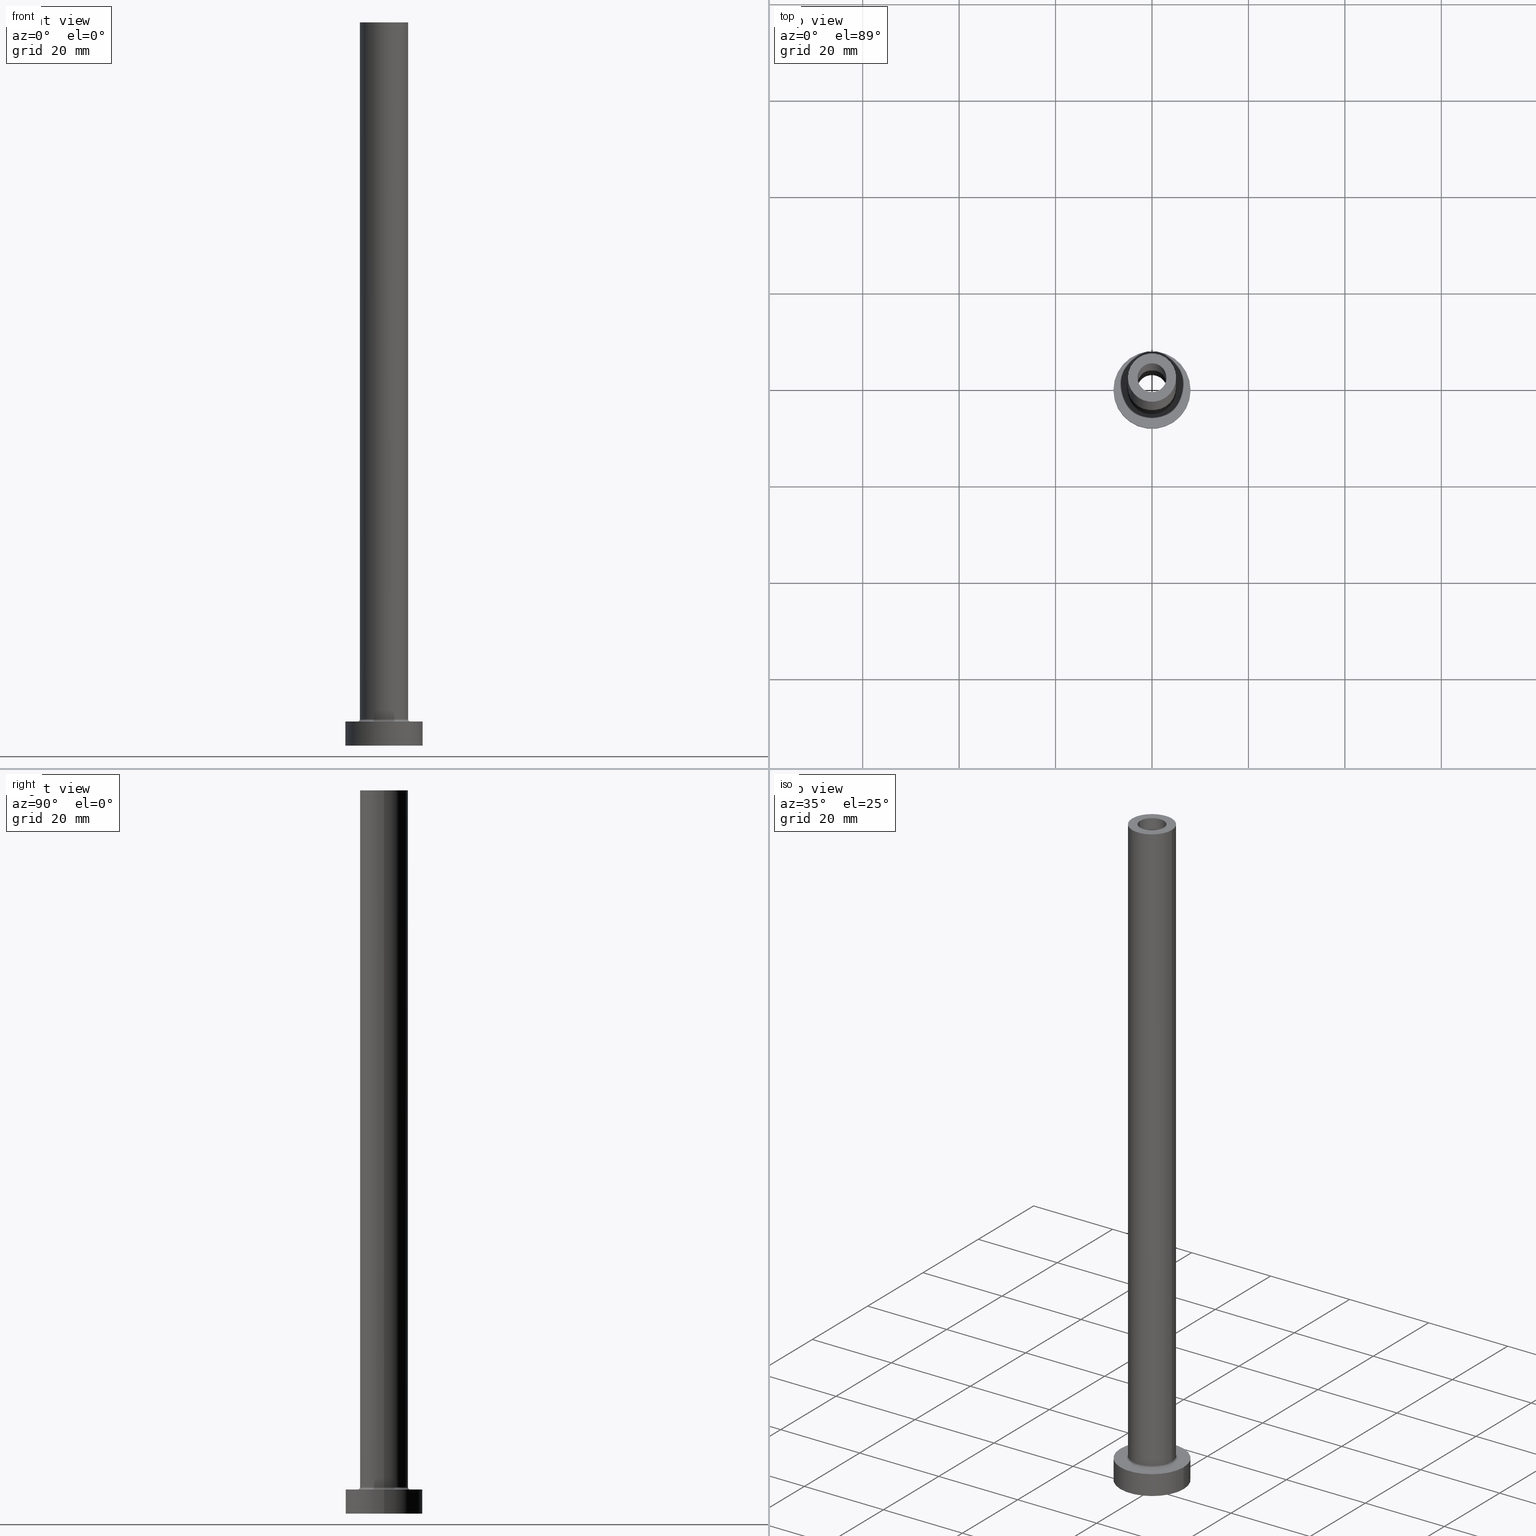
[diagram: canonical four-view strip — front | top / right | iso, engineering-drawing reading convention]
A machine part, canonical four-view strip (front | top / right | iso — engineering-drawing reading convention). The complete STEP part file that produces these views, byte-faithful:
ISO-10303-21;
HEADER;
FILE_DESCRIPTION (( 'STEP AP203' ),
    '1' );
FILE_NAME ('8f07.STEP',
    '2023-02-13T15:32:44',
    ( '' ),
    ( '' ),
    'SwSTEP 2.0',
    'SolidWorks 2019',
    '' );
FILE_SCHEMA (( 'CONFIG_CONTROL_DESIGN' ));
ENDSEC;

DATA;
#1 = FACE_OUTER_BOUND ( 'NONE', #126, .T. ) ;
#2 = CARTESIAN_POINT ( 'NONE',  ( 0.000000000000000000, 0.000000000000000000, 0.000000000000000000 ) ) ;
#3 = DIRECTION ( 'NONE',  ( -1.000000000000000000, 0.000000000000000000, 0.000000000000000000 ) ) ;
#4 = CARTESIAN_POINT ( 'NONE',  ( 8.000000000000000000, 9.797174393178825657E-16, 5.000000000000000000 ) ) ;
#5 = DIRECTION ( 'NONE',  ( 1.000000000000000000, 0.000000000000000000, 0.000000000000000000 ) ) ;
#6 = ORIENTED_EDGE ( 'NONE', *, *, #187, .T. ) ;
#7 = DIRECTION ( 'NONE',  ( -1.000000000000000000, 1.224646799147351482E-16, 0.000000000000000000 ) ) ;
#8 = ORIENTED_EDGE ( 'NONE', *, *, #450, .T. ) ;
#9 = PRODUCT_DEFINITION_FORMATION_WITH_SPECIFIED_SOURCE ( 'LIBOVOLN�', '', #368, .NOT_KNOWN. ) ;
#10 = EDGE_LOOP ( 'NONE', ( #40, #234, #254, #290 ) ) ;
#11 = CARTESIAN_POINT ( 'NONE',  ( 0.000000000000000000, 0.000000000000000000, 5.500000000000005329 ) ) ;
#12 = EDGE_CURVE ( 'NONE', #239, #149, #91, .T. ) ;
#13 = CARTESIAN_POINT ( 'NONE',  ( 0.000000000000000000, 0.000000000000000000, 0.000000000000000000 ) ) ;
#14 = ORIENTED_EDGE ( 'NONE', *, *, #256, .F. ) ;
#15 = ADVANCED_FACE ( 'NONE', ( #109, #138 ), #103, .F. ) ;
#16 = CARTESIAN_POINT ( 'NONE',  ( 0.000000000000000000, 0.000000000000000000, 105.0000000000000000 ) ) ;
#17 = DIRECTION ( 'NONE',  ( 1.000000000000000000, 0.000000000000000000, 0.000000000000000000 ) ) ;
#18 = CARTESIAN_POINT ( 'NONE',  ( 0.000000000000000000, 0.000000000000000000, 150.0000000000000000 ) ) ;
#19 = DIRECTION ( 'NONE',  ( 1.000000000000000000, 0.000000000000000000, 0.000000000000000000 ) ) ;
#20 = CIRCLE ( 'NONE', #71, 0.5000000000000004441 ) ;
#21 = PERSON ( 'NEUR�EN�', 'NEUR�EN�', 'NEUR�EN�', ('NEUR�EN�'), ('NEUR�EN�'), ('NEUR�EN�') ) ;
#22 = VERTEX_POINT ( 'NONE', #185 ) ;
#23 = DIRECTION ( 'NONE',  ( 0.000000000000000000, 0.000000000000000000, -1.000000000000000000 ) ) ;
#24 = APPLICATION_CONTEXT ( 'configuration controlled 3d designs of mechanical parts and assemblies' ) ;
#25 = APPROVAL_STATUS ( 'not_yet_approved' ) ;
#26 = ORIENTED_EDGE ( 'NONE', *, *, #354, .F. ) ;
#27 = EDGE_CURVE ( 'NONE', #429, #110, #203, .T. ) ;
#28 = DIRECTION ( 'NONE',  ( 1.000000000000000000, 0.000000000000000000, 0.000000000000000000 ) ) ;
#29 = AXIS2_PLACEMENT_3D ( 'NONE', #393, #322, #3 ) ;
#30 = PERSON_AND_ORGANIZATION_ROLE ( 'design_supplier' ) ;
#31 = CARTESIAN_POINT ( 'NONE',  ( 0.000000000000000000, 0.000000000000000000, 5.000000000000000000 ) ) ;
#32 = APPLICATION_PROTOCOL_DEFINITION ( 'international standard', 'config_control_design', 1994, #179 ) ;
#33 = DATE_AND_TIME ( #382, #175 ) ;
#34 = APPROVAL_PERSON_ORGANIZATION ( #170, #298, #241 ) ;
#35 = AXIS2_PLACEMENT_3D ( 'NONE', #55, #88, #118 ) ;
#36 = CARTESIAN_POINT ( 'NONE',  ( 0.000000000000000000, 0.000000000000000000, 150.0000000000000000 ) ) ;
#37 = AXIS2_PLACEMENT_3D ( 'NONE', #214, #112, #428 ) ;
#38 = DIRECTION ( 'NONE',  ( 1.000000000000000000, 0.000000000000000000, -0.000000000000000000 ) ) ;
#39 = DIRECTION ( 'NONE',  ( 1.000000000000000000, 0.000000000000000000, 0.000000000000000000 ) ) ;
#40 = ORIENTED_EDGE ( 'NONE', *, *, #421, .F. ) ;
#41 = AXIS2_PLACEMENT_3D ( 'NONE', #289, #430, #7 ) ;
#42 = FACE_OUTER_BOUND ( 'NONE', #10, .T. ) ;
#43 = VERTEX_POINT ( 'NONE', #396 ) ;
#44 = LINE ( 'NONE', #157, #363 ) ;
#45 = CYLINDRICAL_SURFACE ( 'NONE', #50, 3.000000000000000444 ) ;
#46 = FACE_OUTER_BOUND ( 'NONE', #253, .T. ) ;
#47 = ORIENTED_EDGE ( 'NONE', *, *, #104, .F. ) ;
#48 = DIRECTION ( 'NONE',  ( 1.000000000000000000, 0.000000000000000000, 0.000000000000000000 ) ) ;
#49 = DIRECTION ( 'NONE',  ( -0.000000000000000000, -0.000000000000000000, -1.000000000000000000 ) ) ;
#50 = AXIS2_PLACEMENT_3D ( 'NONE', #174, #221, #188 ) ;
#51 = EDGE_CURVE ( 'NONE', #305, #43, #143, .T. ) ;
#52 = CYLINDRICAL_SURFACE ( 'NONE', #124, 5.000000000000000000 ) ;
#53 = DIRECTION ( 'NONE',  ( 1.000000000000000000, 0.000000000000000000, 0.000000000000000000 ) ) ;
#54 = ORIENTED_EDGE ( 'NONE', *, *, #245, .F. ) ;
#55 = CARTESIAN_POINT ( 'NONE',  ( 0.000000000000000000, 0.000000000000000000, 105.0000000000000000 ) ) ;
#56 = EDGE_CURVE ( 'NONE', #152, #360, #193, .T. ) ;
#57 = CC_DESIGN_APPROVAL ( #385, ( #248 ) ) ;
#58 = PLANE ( 'NONE',  #304 ) ;
#59 = AXIS2_PLACEMENT_3D ( 'NONE', #399, #365, #130 ) ;
#60 = DATE_AND_TIME ( #68, #400 ) ;
#61 = EDGE_CURVE ( 'NONE', #22, #440, #263, .T. ) ;
#62 = CARTESIAN_POINT ( 'NONE',  ( 0.000000000000000000, 0.000000000000000000, 0.000000000000000000 ) ) ;
#63 = SECURITY_CLASSIFICATION_LEVEL ( 'unclassified' ) ;
#64 = ORIENTED_EDGE ( 'NONE', *, *, #27, .T. ) ;
#65 = EDGE_CURVE ( 'NONE', #151, #92, #172, .T. ) ;
#66 = CALENDAR_DATE ( 2023, 13, 2 ) ;
#67 = AXIS2_PLACEMENT_3D ( 'NONE', #292, #222, #195 ) ;
#68 = CALENDAR_DATE ( 2023, 13, 2 ) ;
#69 = FACE_OUTER_BOUND ( 'NONE', #190, .T. ) ;
#70 = CARTESIAN_POINT ( 'NONE',  ( 0.000000000000000000, 0.000000000000000000, 0.000000000000000000 ) ) ;
#71 = AXIS2_PLACEMENT_3D ( 'NONE', #390, #258, #392 ) ;
#72 = CARTESIAN_POINT ( 'NONE',  ( 3.000000000000000444, 3.673940397442059868E-16, 150.0000000000000000 ) ) ;
#73 = DIRECTION ( 'NONE',  ( -0.000000000000000000, -0.000000000000000000, -1.000000000000000000 ) ) ;
#74 = CARTESIAN_POINT ( 'NONE',  ( 5.000000000000000000, 6.123233995736766282E-16, 150.0000000000000000 ) ) ;
#75 = EDGE_LOOP ( 'NONE', ( #228, #284, #84, #90 ) ) ;
#76 = CARTESIAN_POINT ( 'NONE',  ( -3.000000000000000444, 0.000000000000000000, 105.0000000000000000 ) ) ;
#77 = LOCAL_TIME ( 16, 32, 44.00000000000000000, #349 ) ;
#78 = VECTOR ( 'NONE', #307, 1000.000000000000000 ) ;
#79 = EDGE_CURVE ( 'NONE', #134, #43, #452, .T. ) ;
#80 = SECURITY_CLASSIFICATION ( '', '', #63 ) ;
#81 = PLANE ( 'NONE',  #127 ) ;
#82 = EDGE_LOOP ( 'NONE', ( #362, #153, #257, #186 ) ) ;
#83 = DIRECTION ( 'NONE',  ( 1.000000000000000000, 0.000000000000000000, 0.000000000000000000 ) ) ;
#84 = ORIENTED_EDGE ( 'NONE', *, *, #79, .T. ) ;
#85 = DIRECTION ( 'NONE',  ( 1.000000000000000000, 0.000000000000000000, -0.000000000000000000 ) ) ;
#86 = FACE_OUTER_BOUND ( 'NONE', #75, .T. ) ;
#87 = ORIENTED_EDGE ( 'NONE', *, *, #245, .T. ) ;
#88 = DIRECTION ( 'NONE',  ( 0.000000000000000000, 0.000000000000000000, 1.000000000000000000 ) ) ;
#89 = CIRCLE ( 'NONE', #343, 5.000000000000000000 ) ;
#90 = ORIENTED_EDGE ( 'NONE', *, *, #51, .F. ) ;
#91 = CIRCLE ( 'NONE', #223, 3.000000000000000444 ) ;
#92 = VERTEX_POINT ( 'NONE', #163 ) ;
#93 = LINE ( 'NONE', #444, #370 ) ;
#94 = ADVANCED_FACE ( 'NONE', ( #86 ), #52, .T. ) ;
#95 = DATE_AND_TIME ( #66, #158 ) ;
#96 = ADVANCED_FACE ( 'NONE', ( #340 ), #210, .T. ) ;
#97 = APPROVAL_PERSON_ORGANIZATION ( #412, #385, #166 ) ;
#98 =( NAMED_UNIT ( * ) SI_UNIT ( $, .STERADIAN. ) SOLID_ANGLE_UNIT ( ) );
#99 = ADVANCED_FACE ( 'NONE', ( #316 ), #277, .F. ) ;
#100 = COORDINATED_UNIVERSAL_TIME_OFFSET ( 1, 0, .AHEAD. ) ;
#101 = EDGE_CURVE ( 'NONE', #360, #429, #44, .T. ) ;
#102 = CARTESIAN_POINT ( 'NONE',  ( 0.000000000000000000, 0.000000000000000000, 5.500000000000005329 ) ) ;
#103 = PLANE ( 'NONE',  #347 ) ;
#104 = EDGE_CURVE ( 'NONE', #217, #332, #457, .T. ) ;
#105 = CIRCLE ( 'NONE', #41, 0.5000000000000004441 ) ;
#106 = CC_DESIGN_PERSON_AND_ORGANIZATION_ASSIGNMENT ( #381, #351, ( #368 ) ) ;
#107 = DIRECTION ( 'NONE',  ( 0.000000000000000000, 0.000000000000000000, -1.000000000000000000 ) ) ;
#108 = DIRECTION ( 'NONE',  ( 1.000000000000000000, 0.000000000000000000, 0.000000000000000000 ) ) ;
#109 = FACE_BOUND ( 'NONE', #206, .T. ) ;
#110 = VERTEX_POINT ( 'NONE', #373 ) ;
#111 = DIRECTION ( 'NONE',  ( -0.000000000000000000, -0.000000000000000000, -1.000000000000000000 ) ) ;
#112 = DIRECTION ( 'NONE',  ( 0.000000000000000000, 0.000000000000000000, 1.000000000000000000 ) ) ;
#113 = CC_DESIGN_APPROVAL ( #298, ( #9 ) ) ;
#114 = CIRCLE ( 'NONE', #439, 3.150000000000000355 ) ;
#115 = DIRECTION ( 'NONE',  ( -0.000000000000000000, -0.000000000000000000, -1.000000000000000000 ) ) ;
#116 = ADVANCED_FACE ( 'NONE', ( #69 ), #45, .F. ) ;
#117 = ORIENTED_EDGE ( 'NONE', *, *, #310, .F. ) ;
#118 = DIRECTION ( 'NONE',  ( 1.000000000000000000, 0.000000000000000000, 0.000000000000000000 ) ) ;
#119 = ORIENTED_EDGE ( 'NONE', *, *, #387, .F. ) ;
#120 = CARTESIAN_POINT ( 'NONE',  ( 3.150000000000000355, 3.857637417314162196E-16, 0.000000000000000000 ) ) ;
#121 = ORIENTED_EDGE ( 'NONE', *, *, #142, .T. ) ;
#122 = DIRECTION ( 'NONE',  ( 1.000000000000000000, 0.000000000000000000, 0.000000000000000000 ) ) ;
#123 = LINE ( 'NONE', #369, #280 ) ;
#124 = AXIS2_PLACEMENT_3D ( 'NONE', #192, #336, #375 ) ;
#125 = CC_DESIGN_PERSON_AND_ORGANIZATION_ASSIGNMENT ( #129, #274, ( #80 ) ) ;
#126 = EDGE_LOOP ( 'NONE', ( #443, #420, #121, #329 ) ) ;
#127 = AXIS2_PLACEMENT_3D ( 'NONE', #432, #357, #38 ) ;
#128 = APPROVAL_STATUS ( 'not_yet_approved' ) ;
#129 = PERSON_AND_ORGANIZATION ( #21, #294 ) ;
#130 = DIRECTION ( 'NONE',  ( 1.000000000000000000, 0.000000000000000000, 0.000000000000000000 ) ) ;
#131 = DATE_AND_TIME ( #384, #455 ) ;
#132 = TOROIDAL_SURFACE ( 'NONE', #140, 5.500000000000000000, 0.5000000000000000000 ) ;
#133 = EDGE_LOOP ( 'NONE', ( #335, #8 ) ) ;
#134 = VERTEX_POINT ( 'NONE', #458 ) ;
#135 = ADVANCED_FACE ( 'NONE', ( #1 ), #352, .F. ) ;
#136 = ORIENTED_EDGE ( 'NONE', *, *, #27, .F. ) ;
#137 = CARTESIAN_POINT ( 'NONE',  ( -8.000000000000000000, 0.000000000000000000, 0.000000000000000000 ) ) ;
#138 = FACE_OUTER_BOUND ( 'NONE', #293, .T. ) ;
#139 = CARTESIAN_POINT ( 'NONE',  ( 0.000000000000000000, 0.000000000000000000, 5.500000000000005329 ) ) ;
#140 = AXIS2_PLACEMENT_3D ( 'NONE', #139, #213, #286 ) ;
#141 = FACE_BOUND ( 'NONE', #212, .T. ) ;
#142 = EDGE_CURVE ( 'NONE', #134, #22, #20, .T. ) ;
#143 = LINE ( 'NONE', #145, #415 ) ;
#144 = FACE_OUTER_BOUND ( 'NONE', #161, .T. ) ;
#145 = CARTESIAN_POINT ( 'NONE',  ( -5.000000000000000000, 0.000000000000000000, 150.0000000000000000 ) ) ;
#146 = ORIENTED_EDGE ( 'NONE', *, *, #354, .T. ) ;
#147 = EDGE_CURVE ( 'NONE', #189, #374, #389, .T. ) ;
#148 = FACE_OUTER_BOUND ( 'NONE', #337, .T. ) ;
#149 = VERTEX_POINT ( 'NONE', #76 ) ;
#150 = AXIS2_PLACEMENT_3D ( 'NONE', #309, #409, #155 ) ;
#151 = VERTEX_POINT ( 'NONE', #137 ) ;
#152 = VERTEX_POINT ( 'NONE', #285 ) ;
#153 = ORIENTED_EDGE ( 'NONE', *, *, #359, .F. ) ;
#154 = CYLINDRICAL_SURFACE ( 'NONE', #150, 3.150000000000000355 ) ;
#155 = DIRECTION ( 'NONE',  ( -1.000000000000000000, 0.000000000000000000, 0.000000000000000000 ) ) ;
#156 = DIRECTION ( 'NONE',  ( 0.000000000000000000, 0.000000000000000000, 1.000000000000000000 ) ) ;
#157 = CARTESIAN_POINT ( 'NONE',  ( 3.150000000000000355, 3.857637417314162196E-16, 113.9095454429505025 ) ) ;
#158 = LOCAL_TIME ( 16, 32, 44.00000000000000000, #417 ) ;
#159 = ORIENTED_EDGE ( 'NONE', *, *, #176, .T. ) ;
#160 =( GEOMETRIC_REPRESENTATION_CONTEXT ( 3 ) GLOBAL_UNCERTAINTY_ASSIGNED_CONTEXT ( ( #451 ) ) GLOBAL_UNIT_ASSIGNED_CONTEXT ( ( #191, #434, #98 ) ) REPRESENTATION_CONTEXT ( 'NONE', 'WORKASPACE' ) );
#161 = EDGE_LOOP ( 'NONE', ( #204, #408, #431, #379 ) ) ;
#162 = AXIS2_PLACEMENT_3D ( 'NONE', #70, #353, #39 ) ;
#163 = CARTESIAN_POINT ( 'NONE',  ( 8.000000000000000000, 9.797174393178825657E-16, 0.000000000000000000 ) ) ;
#164 = ORIENTED_EDGE ( 'NONE', *, *, #176, .F. ) ;
#165 = CARTESIAN_POINT ( 'NONE',  ( -8.000000000000000000, 0.000000000000000000, 5.000000000000000000 ) ) ;
#166 = APPROVAL_ROLE ( '' ) ;
#167 = DIRECTION ( 'NONE',  ( 0.000000000000000000, 0.000000000000000000, 1.000000000000000000 ) ) ;
#168 = AXIS2_PLACEMENT_3D ( 'NONE', #226, #341, #302 ) ;
#169 = ORIENTED_EDGE ( 'NONE', *, *, #421, .T. ) ;
#170 = PERSON_AND_ORGANIZATION ( #21, #294 ) ;
#171 = DIRECTION ( 'NONE',  ( -1.000000000000000000, 0.000000000000000000, 0.000000000000000000 ) ) ;
#172 = CIRCLE ( 'NONE', #231, 8.000000000000000000 ) ;
#173 = DATE_AND_TIME ( #314, #77 ) ;
#174 = CARTESIAN_POINT ( 'NONE',  ( 0.000000000000000000, 0.000000000000000000, 150.0000000000000000 ) ) ;
#175 = LOCAL_TIME ( 16, 32, 44.00000000000000000, #453 ) ;
#176 = EDGE_CURVE ( 'NONE', #152, #110, #397, .T. ) ;
#177 = CARTESIAN_POINT ( 'NONE',  ( 0.000000000000000000, 0.000000000000000000, 5.000000000000000000 ) ) ;
#178 = CARTESIAN_POINT ( 'NONE',  ( 3.000000000000000444, 3.673940397442059868E-16, 105.0000000000000000 ) ) ;
#179 = APPLICATION_CONTEXT ( 'configuration controlled 3d designs of mechanical parts and assemblies' ) ;
#180 = DIRECTION ( 'NONE',  ( 0.000000000000000000, 0.000000000000000000, 1.000000000000000000 ) ) ;
#181 = APPROVAL_PERSON_ORGANIZATION ( #414, #313, #418 ) ;
#182 = DIRECTION ( 'NONE',  ( 0.000000000000000000, 0.000000000000000000, 1.000000000000000000 ) ) ;
#183 = AXIS2_PLACEMENT_3D ( 'NONE', #62, #167, #28 ) ;
#184 = CYLINDRICAL_SURFACE ( 'NONE', #237, 3.000000000000000444 ) ;
#185 = CARTESIAN_POINT ( 'NONE',  ( 5.500000000000000000, 0.000000000000000000, 5.000000000000002665 ) ) ;
#186 = ORIENTED_EDGE ( 'NONE', *, *, #445, .T. ) ;
#187 = EDGE_CURVE ( 'NONE', #374, #151, #324, .T. ) ;
#188 = DIRECTION ( 'NONE',  ( -1.000000000000000000, 0.000000000000000000, 0.000000000000000000 ) ) ;
#189 = VERTEX_POINT ( 'NONE', #4 ) ;
#190 = EDGE_LOOP ( 'NONE', ( #87, #169, #26, #306 ) ) ;
#191 =( LENGTH_UNIT ( ) NAMED_UNIT ( * ) SI_UNIT ( .MILLI., .METRE. ) );
#192 = CARTESIAN_POINT ( 'NONE',  ( 0.000000000000000000, 0.000000000000000000, 150.0000000000000000 ) ) ;
#193 = CIRCLE ( 'NONE', #37, 3.150000000000000355 ) ;
#194 = LINE ( 'NONE', #264, #78 ) ;
#195 = DIRECTION ( 'NONE',  ( 1.000000000000000000, 0.000000000000000000, 0.000000000000000000 ) ) ;
#196 = ORIENTED_EDGE ( 'NONE', *, *, #12, .T. ) ;
#197 = ADVANCED_FACE ( 'NONE', ( #144 ), #291, .T. ) ;
#198 = CARTESIAN_POINT ( 'NONE',  ( 0.000000000000000000, 0.000000000000000000, 150.0000000000000000 ) ) ;
#199 = AXIS2_PLACEMENT_3D ( 'NONE', #270, #366, #48 ) ;
#200 = ORIENTED_EDGE ( 'NONE', *, *, #56, .T. ) ;
#201 = DIRECTION ( 'NONE',  ( -1.000000000000000000, 0.000000000000000000, 0.000000000000000000 ) ) ;
#202 = ORIENTED_EDGE ( 'NONE', *, *, #240, .F. ) ;
#203 = CIRCLE ( 'NONE', #356, 3.150000000000000355 ) ;
#204 = ORIENTED_EDGE ( 'NONE', *, *, #147, .F. ) ;
#205 = AXIS2_PLACEMENT_3D ( 'NONE', #177, #180, #461 ) ;
#206 = EDGE_LOOP ( 'NONE', ( #146, #196 ) ) ;
#207 = DATE_TIME_ROLE ( 'creation_date' ) ;
#208 = ADVANCED_BREP_SHAPE_REPRESENTATION ( '8f07', ( #403, #183 ), #160 ) ;
#209 = APPROVAL_STATUS ( 'not_yet_approved' ) ;
#210 = CYLINDRICAL_SURFACE ( 'NONE', #297, 8.000000000000000000 ) ;
#211 = AXIS2_PLACEMENT_3D ( 'NONE', #422, #321, #328 ) ;
#212 = EDGE_LOOP ( 'NONE', ( #315, #136 ) ) ;
#213 = DIRECTION ( 'NONE',  ( 0.000000000000000000, 0.000000000000000000, 1.000000000000000000 ) ) ;
#214 = CARTESIAN_POINT ( 'NONE',  ( 0.000000000000000000, 0.000000000000000000, 105.0000000000000000 ) ) ;
#215 = CC_DESIGN_PERSON_AND_ORGANIZATION_ASSIGNMENT ( #454, #30, ( #9 ) ) ;
#216 = CARTESIAN_POINT ( 'NONE',  ( 0.000000000000000000, 0.000000000000000000, 150.0000000000000000 ) ) ;
#217 = VERTEX_POINT ( 'NONE', #72 ) ;
#218 = PLANE ( 'NONE',  #312 ) ;
#219 = EDGE_LOOP ( 'NONE', ( #265, #225, #159, #435 ) ) ;
#220 = PRODUCT_RELATED_PRODUCT_CATEGORY ( 'detail', '', ( #368 ) ) ;
#221 = DIRECTION ( 'NONE',  ( 0.000000000000000000, 0.000000000000000000, -1.000000000000000000 ) ) ;
#222 = DIRECTION ( 'NONE',  ( -0.000000000000000000, -0.000000000000000000, -1.000000000000000000 ) ) ;
#223 = AXIS2_PLACEMENT_3D ( 'NONE', #394, #182, #459 ) ;
#224 = CARTESIAN_POINT ( 'NONE',  ( -5.500000000000000000, 6.735557395310442023E-16, 5.000000000000002665 ) ) ;
#225 = ORIENTED_EDGE ( 'NONE', *, *, #310, .T. ) ;
#226 = CARTESIAN_POINT ( 'NONE',  ( 0.000000000000000000, 0.000000000000000000, 150.0000000000000000 ) ) ;
#227 = CIRCLE ( 'NONE', #287, 3.150000000000000355 ) ;
#228 = ORIENTED_EDGE ( 'NONE', *, *, #425, .F. ) ;
#229 = DIRECTION ( 'NONE',  ( -0.000000000000000000, -0.000000000000000000, -1.000000000000000000 ) ) ;
#230 = DIRECTION ( 'NONE',  ( 0.000000000000000000, 0.000000000000000000, 1.000000000000000000 ) ) ;
#231 = AXIS2_PLACEMENT_3D ( 'NONE', #442, #230, #17 ) ;
#232 = LINE ( 'NONE', #300, #433 ) ;
#233 = CARTESIAN_POINT ( 'NONE',  ( 0.000000000000000000, 0.000000000000000000, 5.500000000000005329 ) ) ;
#234 = ORIENTED_EDGE ( 'NONE', *, *, #104, .T. ) ;
#235 = ADVANCED_FACE ( 'NONE', ( #46 ), #132, .F. ) ;
#236 = FACE_OUTER_BOUND ( 'NONE', #82, .T. ) ;
#237 = AXIS2_PLACEMENT_3D ( 'NONE', #36, #271, #201 ) ;
#238 = VERTEX_POINT ( 'NONE', #74 ) ;
#239 = VERTEX_POINT ( 'NONE', #178 ) ;
#240 = EDGE_CURVE ( 'NONE', #92, #151, #333, .T. ) ;
#241 = APPROVAL_ROLE ( '' ) ;
#242 = CC_DESIGN_SECURITY_CLASSIFICATION ( #80, ( #9 ) ) ;
#243 = PERSON_AND_ORGANIZATION ( #21, #294 ) ;
#244 = AXIS2_PLACEMENT_3D ( 'NONE', #198, #267, #83 ) ;
#245 = EDGE_CURVE ( 'NONE', #332, #217, #413, .T. ) ;
#246 = COORDINATED_UNIVERSAL_TIME_OFFSET ( 1, 0, .AHEAD. ) ;
#247 = ADVANCED_FACE ( 'NONE', ( #141, #424 ), #81, .F. ) ;
#248 = PRODUCT_DEFINITION ( 'NEZN�M�', '', #9, #383 ) ;
#249 = CARTESIAN_POINT ( 'NONE',  ( 0.000000000000000000, 0.000000000000000000, 5.000000000000000000 ) ) ;
#250 = DIRECTION ( 'NONE',  ( 0.000000000000000000, 0.000000000000000000, -1.000000000000000000 ) ) ;
#251 = AXIS2_PLACEMENT_3D ( 'NONE', #216, #330, #355 ) ;
#252 = CARTESIAN_POINT ( 'NONE',  ( -8.000000000000000000, 0.000000000000000000, 5.000000000000000000 ) ) ;
#253 = EDGE_LOOP ( 'NONE', ( #281, #339, #301, #260 ) ) ;
#254 = ORIENTED_EDGE ( 'NONE', *, *, #288, .T. ) ;
#255 = CARTESIAN_POINT ( 'NONE',  ( -3.150000000000000355, 0.000000000000000000, 113.9095454429505025 ) ) ;
#256 = EDGE_CURVE ( 'NONE', #374, #189, #318, .T. ) ;
#257 = ORIENTED_EDGE ( 'NONE', *, *, #51, .T. ) ;
#258 = DIRECTION ( 'NONE',  ( 0.000000000000000000, -1.000000000000000000, 0.000000000000000000 ) ) ;
#259 = VECTOR ( 'NONE', #107, 1000.000000000000000 ) ;
#260 = ORIENTED_EDGE ( 'NONE', *, *, #142, .F. ) ;
#261 = DIRECTION ( 'NONE',  ( 1.000000000000000000, 0.000000000000000000, 0.000000000000000000 ) ) ;
#262 = EDGE_CURVE ( 'NONE', #43, #440, #105, .T. ) ;
#263 = CIRCLE ( 'NONE', #67, 5.500000000000000000 ) ;
#264 = CARTESIAN_POINT ( 'NONE',  ( 5.000000000000000000, 6.123233995736766282E-16, 150.0000000000000000 ) ) ;
#265 = ORIENTED_EDGE ( 'NONE', *, *, #101, .F. ) ;
#266 = CC_DESIGN_DATE_AND_TIME_ASSIGNMENT ( #60, #276, ( #80 ) ) ;
#267 = DIRECTION ( 'NONE',  ( 0.000000000000000000, 0.000000000000000000, 1.000000000000000000 ) ) ;
#268 = CIRCLE ( 'NONE', #35, 3.000000000000000444 ) ;
#269 = EDGE_LOOP ( 'NONE', ( #200, #401, #64, #164 ) ) ;
#270 = CARTESIAN_POINT ( 'NONE',  ( 0.000000000000000000, 0.000000000000000000, 5.000000000000000000 ) ) ;
#271 = DIRECTION ( 'NONE',  ( 0.000000000000000000, 0.000000000000000000, -1.000000000000000000 ) ) ;
#272 = APPROVAL_DATE_TIME ( #33, #298 ) ;
#273 = CIRCLE ( 'NONE', #244, 5.000000000000000000 ) ;
#274 = PERSON_AND_ORGANIZATION_ROLE ( 'classification_officer' ) ;
#275 = PERSON_AND_ORGANIZATION_ROLE ( 'creator' ) ;
#276 = DATE_TIME_ROLE ( 'classification_date' ) ;
#277 = CYLINDRICAL_SURFACE ( 'NONE', #29, 3.150000000000000355 ) ;
#278 = ADVANCED_FACE ( 'NONE', ( #395, #148 ), #218, .T. ) ;
#279 = APPROVAL_DATE_TIME ( #131, #313 ) ;
#280 = VECTOR ( 'NONE', #338, 1000.000000000000000 ) ;
#281 = ORIENTED_EDGE ( 'NONE', *, *, #445, .F. ) ;
#282 = CLOSED_SHELL ( 'NONE', ( #116, #99, #235, #94, #197, #96, #278, #247, #303, #319, #135, #406, #15, #283 ) ) ;
#283 = ADVANCED_FACE ( 'NONE', ( #42 ), #184, .F. ) ;
#284 = ORIENTED_EDGE ( 'NONE', *, *, #371, .T. ) ;
#285 = CARTESIAN_POINT ( 'NONE',  ( -3.150000000000000355, 0.000000000000000000, 105.0000000000000000 ) ) ;
#286 = DIRECTION ( 'NONE',  ( 1.000000000000000000, 0.000000000000000000, 0.000000000000000000 ) ) ;
#287 = AXIS2_PLACEMENT_3D ( 'NONE', #13, #49, #261 ) ;
#288 = EDGE_CURVE ( 'NONE', #332, #149, #232, .T. ) ;
#289 = CARTESIAN_POINT ( 'NONE',  ( -5.500000000000000000, 6.735557395310442023E-16, 5.500000000000005329 ) ) ;
#290 = ORIENTED_EDGE ( 'NONE', *, *, #12, .F. ) ;
#291 = CYLINDRICAL_SURFACE ( 'NONE', #448, 8.000000000000000000 ) ;
#292 = CARTESIAN_POINT ( 'NONE',  ( 0.000000000000000000, 0.000000000000000000, 5.000000000000000000 ) ) ;
#293 = EDGE_LOOP ( 'NONE', ( #378, #117 ) ) ;
#294 = ORGANIZATION ( 'NEUR�EN�', 'NEUR�EN�', '' ) ;
#295 = DIRECTION ( 'NONE',  ( 0.000000000000000000, 0.000000000000000000, -1.000000000000000000 ) ) ;
#296 = PRODUCT_DEFINITION_SHAPE ( 'NONE', 'NONE',  #248 ) ;
#297 = AXIS2_PLACEMENT_3D ( 'NONE', #31, #350, #171 ) ;
#298 = APPROVAL ( #128, 'NEUR�EN�' ) ;
#299 = EDGE_LOOP ( 'NONE', ( #344, #308 ) ) ;
#300 = CARTESIAN_POINT ( 'NONE',  ( -3.000000000000000444, 0.000000000000000000, 150.0000000000000000 ) ) ;
#301 = ORIENTED_EDGE ( 'NONE', *, *, #61, .F. ) ;
#302 = DIRECTION ( 'NONE',  ( 1.000000000000000000, 0.000000000000000000, 0.000000000000000000 ) ) ;
#303 = ADVANCED_FACE ( 'NONE', ( #236 ), #407, .T. ) ;
#304 = AXIS2_PLACEMENT_3D ( 'NONE', #18, #411, #85 ) ;
#305 = VERTEX_POINT ( 'NONE', #441 ) ;
#306 = ORIENTED_EDGE ( 'NONE', *, *, #288, .F. ) ;
#307 = DIRECTION ( 'NONE',  ( -0.000000000000000000, -0.000000000000000000, -1.000000000000000000 ) ) ;
#308 = ORIENTED_EDGE ( 'NONE', *, *, #425, .T. ) ;
#309 = CARTESIAN_POINT ( 'NONE',  ( 0.000000000000000000, 0.000000000000000000, 113.9095454429505025 ) ) ;
#310 = EDGE_CURVE ( 'NONE', #360, #152, #114, .T. ) ;
#311 = PERSON_AND_ORGANIZATION_ROLE ( 'creator' ) ;
#312 = AXIS2_PLACEMENT_3D ( 'NONE', #388, #361, #364 ) ;
#313 = APPROVAL ( #209, 'NEUR�EN�' ) ;
#314 = CALENDAR_DATE ( 2023, 13, 2 ) ;
#315 = ORIENTED_EDGE ( 'NONE', *, *, #438, .F. ) ;
#316 = FACE_OUTER_BOUND ( 'NONE', #269, .T. ) ;
#317 = APPROVAL_DATE_TIME ( #173, #385 ) ;
#318 = CIRCLE ( 'NONE', #205, 8.000000000000000000 ) ;
#319 = ADVANCED_FACE ( 'NONE', ( #372, #376 ), #58, .T. ) ;
#320 = ORIENTED_EDGE ( 'NONE', *, *, #65, .T. ) ;
#321 = DIRECTION ( 'NONE',  ( 0.000000000000000000, 0.000000000000000000, 1.000000000000000000 ) ) ;
#322 = DIRECTION ( 'NONE',  ( 0.000000000000000000, 0.000000000000000000, -1.000000000000000000 ) ) ;
#323 = DIRECTION ( 'NONE',  ( -1.000000000000000000, 0.000000000000000000, 0.000000000000000000 ) ) ;
#324 = LINE ( 'NONE', #252, #398 ) ;
#325 = DIRECTION ( 'NONE',  ( 1.000000000000000000, 0.000000000000000000, -0.000000000000000000 ) ) ;
#326 = CIRCLE ( 'NONE', #168, 5.000000000000000000 ) ;
#327 = CC_DESIGN_PERSON_AND_ORGANIZATION_ASSIGNMENT ( #386, #311, ( #9 ) ) ;
#328 = DIRECTION ( 'NONE',  ( 1.000000000000000000, 0.000000000000000000, 0.000000000000000000 ) ) ;
#329 = ORIENTED_EDGE ( 'NONE', *, *, #450, .F. ) ;
#330 = DIRECTION ( 'NONE',  ( 0.000000000000000000, 0.000000000000000000, 1.000000000000000000 ) ) ;
#331 = DIRECTION ( 'NONE',  ( 0.000000000000000000, 0.000000000000000000, 1.000000000000000000 ) ) ;
#332 = VERTEX_POINT ( 'NONE', #377 ) ;
#333 = CIRCLE ( 'NONE', #162, 8.000000000000000000 ) ;
#334 = ORIENTED_EDGE ( 'NONE', *, *, #256, .T. ) ;
#335 = ORIENTED_EDGE ( 'NONE', *, *, #61, .T. ) ;
#336 = DIRECTION ( 'NONE',  ( -0.000000000000000000, -0.000000000000000000, -1.000000000000000000 ) ) ;
#337 = EDGE_LOOP ( 'NONE', ( #334, #367 ) ) ;
#338 = DIRECTION ( 'NONE',  ( -0.000000000000000000, -0.000000000000000000, -1.000000000000000000 ) ) ;
#339 = ORIENTED_EDGE ( 'NONE', *, *, #262, .T. ) ;
#340 = FACE_OUTER_BOUND ( 'NONE', #416, .T. ) ;
#341 = DIRECTION ( 'NONE',  ( 0.000000000000000000, 0.000000000000000000, 1.000000000000000000 ) ) ;
#342 = CC_DESIGN_APPROVAL ( #313, ( #80 ) ) ;
#343 = AXIS2_PLACEMENT_3D ( 'NONE', #11, #331, #122 ) ;
#344 = ORIENTED_EDGE ( 'NONE', *, *, #359, .T. ) ;
#345 = ORIENTED_EDGE ( 'NONE', *, *, #65, .F. ) ;
#346 = FACE_OUTER_BOUND ( 'NONE', #219, .T. ) ;
#347 = AXIS2_PLACEMENT_3D ( 'NONE', #426, #358, #325 ) ;
#348 = AXIS2_PLACEMENT_3D ( 'NONE', #102, #427, #108 ) ;
#349 = COORDINATED_UNIVERSAL_TIME_OFFSET ( 1, 0, .AHEAD. ) ;
#350 = DIRECTION ( 'NONE',  ( -0.000000000000000000, -0.000000000000000000, -1.000000000000000000 ) ) ;
#351 = PERSON_AND_ORGANIZATION_ROLE ( 'design_owner' ) ;
#352 = TOROIDAL_SURFACE ( 'NONE', #348, 5.500000000000000000, 0.5000000000000000000 ) ;
#353 = DIRECTION ( 'NONE',  ( 0.000000000000000000, 0.000000000000000000, 1.000000000000000000 ) ) ;
#354 = EDGE_CURVE ( 'NONE', #149, #239, #268, .T. ) ;
#355 = DIRECTION ( 'NONE',  ( 1.000000000000000000, 0.000000000000000000, 0.000000000000000000 ) ) ;
#356 = AXIS2_PLACEMENT_3D ( 'NONE', #2, #391, #5 ) ;
#357 = DIRECTION ( 'NONE',  ( 0.000000000000000000, 0.000000000000000000, 1.000000000000000000 ) ) ;
#358 = DIRECTION ( 'NONE',  ( 0.000000000000000000, 0.000000000000000000, 1.000000000000000000 ) ) ;
#359 = EDGE_CURVE ( 'NONE', #305, #238, #273, .T. ) ;
#360 = VERTEX_POINT ( 'NONE', #436 ) ;
#361 = DIRECTION ( 'NONE',  ( 0.000000000000000000, 0.000000000000000000, 1.000000000000000000 ) ) ;
#362 = ORIENTED_EDGE ( 'NONE', *, *, #371, .F. ) ;
#363 = VECTOR ( 'NONE', #250, 1000.000000000000000 ) ;
#364 = DIRECTION ( 'NONE',  ( 1.000000000000000000, 0.000000000000000000, -0.000000000000000000 ) ) ;
#365 = DIRECTION ( 'NONE',  ( 0.000000000000000000, 0.000000000000000000, 1.000000000000000000 ) ) ;
#366 = DIRECTION ( 'NONE',  ( -0.000000000000000000, -0.000000000000000000, -1.000000000000000000 ) ) ;
#367 = ORIENTED_EDGE ( 'NONE', *, *, #147, .T. ) ;
#368 = PRODUCT ( '8f07', '8f07', '', ( #449 ) ) ;
#369 = CARTESIAN_POINT ( 'NONE',  ( 8.000000000000000000, 9.797174393178825657E-16, 5.000000000000000000 ) ) ;
#370 = VECTOR ( 'NONE', #295, 1000.000000000000000 ) ;
#371 = EDGE_CURVE ( 'NONE', #238, #134, #194, .T. ) ;
#372 = FACE_BOUND ( 'NONE', #456, .T. ) ;
#373 = CARTESIAN_POINT ( 'NONE',  ( -3.150000000000000355, 0.000000000000000000, 0.000000000000000000 ) ) ;
#374 = VERTEX_POINT ( 'NONE', #165 ) ;
#375 = DIRECTION ( 'NONE',  ( -1.000000000000000000, 0.000000000000000000, 0.000000000000000000 ) ) ;
#376 = FACE_OUTER_BOUND ( 'NONE', #299, .T. ) ;
#377 = CARTESIAN_POINT ( 'NONE',  ( -3.000000000000000444, 0.000000000000000000, 150.0000000000000000 ) ) ;
#378 = ORIENTED_EDGE ( 'NONE', *, *, #56, .F. ) ;
#379 = ORIENTED_EDGE ( 'NONE', *, *, #187, .F. ) ;
#380 = APPLICATION_PROTOCOL_DEFINITION ( 'international standard', 'config_control_design', 1994, #24 ) ;
#381 = PERSON_AND_ORGANIZATION ( #21, #294 ) ;
#382 = CALENDAR_DATE ( 2023, 13, 2 ) ;
#383 = DESIGN_CONTEXT ( 'detailed design', #24, 'design' ) ;
#384 = CALENDAR_DATE ( 2023, 13, 2 ) ;
#385 = APPROVAL ( #25, 'NEUR�EN�' ) ;
#386 = PERSON_AND_ORGANIZATION ( #21, #294 ) ;
#387 = EDGE_CURVE ( 'NONE', #189, #92, #123, .T. ) ;
#388 = CARTESIAN_POINT ( 'NONE',  ( 0.000000000000000000, 0.000000000000000000, 5.000000000000000000 ) ) ;
#389 = CIRCLE ( 'NONE', #211, 8.000000000000000000 ) ;
#390 = CARTESIAN_POINT ( 'NONE',  ( 5.500000000000000000, 0.000000000000000000, 5.500000000000005329 ) ) ;
#391 = DIRECTION ( 'NONE',  ( -0.000000000000000000, -0.000000000000000000, -1.000000000000000000 ) ) ;
#392 = DIRECTION ( 'NONE',  ( 0.000000000000000000, 0.000000000000000000, -1.000000000000000000 ) ) ;
#393 = CARTESIAN_POINT ( 'NONE',  ( 0.000000000000000000, 0.000000000000000000, 113.9095454429505025 ) ) ;
#394 = CARTESIAN_POINT ( 'NONE',  ( 0.000000000000000000, 0.000000000000000000, 105.0000000000000000 ) ) ;
#395 = FACE_BOUND ( 'NONE', #133, .T. ) ;
#396 = CARTESIAN_POINT ( 'NONE',  ( -5.000000000000000000, 0.000000000000000000, 5.500000000000005329 ) ) ;
#397 = LINE ( 'NONE', #255, #259 ) ;
#398 = VECTOR ( 'NONE', #115, 1000.000000000000000 ) ;
#399 = CARTESIAN_POINT ( 'NONE',  ( 0.000000000000000000, 0.000000000000000000, 150.0000000000000000 ) ) ;
#400 = LOCAL_TIME ( 16, 32, 44.00000000000000000, #246 ) ;
#401 = ORIENTED_EDGE ( 'NONE', *, *, #101, .T. ) ;
#402 = DIRECTION ( 'NONE',  ( -1.000000000000000000, 0.000000000000000000, 0.000000000000000000 ) ) ;
#403 = MANIFOLD_SOLID_BREP ( 'Odebrat vysunut�m4', #282 ) ;
#404 = EDGE_LOOP ( 'NONE', ( #345, #202 ) ) ;
#405 = DIRECTION ( 'NONE',  ( 0.000000000000000000, 0.000000000000000000, 1.000000000000000000 ) ) ;
#406 = ADVANCED_FACE ( 'NONE', ( #346 ), #154, .F. ) ;
#407 = CYLINDRICAL_SURFACE ( 'NONE', #423, 5.000000000000000000 ) ;
#408 = ORIENTED_EDGE ( 'NONE', *, *, #387, .T. ) ;
#409 = DIRECTION ( 'NONE',  ( 0.000000000000000000, 0.000000000000000000, -1.000000000000000000 ) ) ;
#410 = AXIS2_PLACEMENT_3D ( 'NONE', #233, #156, #19 ) ;
#411 = DIRECTION ( 'NONE',  ( 0.000000000000000000, 0.000000000000000000, 1.000000000000000000 ) ) ;
#412 = PERSON_AND_ORGANIZATION ( #21, #294 ) ;
#413 = CIRCLE ( 'NONE', #251, 3.000000000000000444 ) ;
#414 = PERSON_AND_ORGANIZATION ( #21, #294 ) ;
#415 = VECTOR ( 'NONE', #73, 1000.000000000000000 ) ;
#416 = EDGE_LOOP ( 'NONE', ( #119, #14, #6, #320 ) ) ;
#417 = COORDINATED_UNIVERSAL_TIME_OFFSET ( 1, 0, .AHEAD. ) ;
#418 = APPROVAL_ROLE ( '' ) ;
#419 = CIRCLE ( 'NONE', #199, 5.500000000000000000 ) ;
#420 = ORIENTED_EDGE ( 'NONE', *, *, #79, .F. ) ;
#421 = EDGE_CURVE ( 'NONE', #217, #239, #93, .T. ) ;
#422 = CARTESIAN_POINT ( 'NONE',  ( 0.000000000000000000, 0.000000000000000000, 5.000000000000000000 ) ) ;
#423 = AXIS2_PLACEMENT_3D ( 'NONE', #437, #229, #402 ) ;
#424 = FACE_OUTER_BOUND ( 'NONE', #404, .T. ) ;
#425 = EDGE_CURVE ( 'NONE', #238, #305, #326, .T. ) ;
#426 = CARTESIAN_POINT ( 'NONE',  ( 0.000000000000000000, 0.000000000000000000, 105.0000000000000000 ) ) ;
#427 = DIRECTION ( 'NONE',  ( 0.000000000000000000, 0.000000000000000000, 1.000000000000000000 ) ) ;
#428 = DIRECTION ( 'NONE',  ( 1.000000000000000000, 0.000000000000000000, 0.000000000000000000 ) ) ;
#429 = VERTEX_POINT ( 'NONE', #120 ) ;
#430 = DIRECTION ( 'NONE',  ( 1.224646799147353207E-16, 1.000000000000000000, -0.000000000000000000 ) ) ;
#431 = ORIENTED_EDGE ( 'NONE', *, *, #240, .T. ) ;
#432 = CARTESIAN_POINT ( 'NONE',  ( 0.000000000000000000, 0.000000000000000000, 0.000000000000000000 ) ) ;
#433 = VECTOR ( 'NONE', #23, 1000.000000000000000 ) ;
#434 =( NAMED_UNIT ( * ) PLANE_ANGLE_UNIT ( ) SI_UNIT ( $, .RADIAN. ) );
#435 = ORIENTED_EDGE ( 'NONE', *, *, #438, .T. ) ;
#436 = CARTESIAN_POINT ( 'NONE',  ( 3.150000000000000355, 3.857637417314162196E-16, 105.0000000000000000 ) ) ;
#437 = CARTESIAN_POINT ( 'NONE',  ( 0.000000000000000000, 0.000000000000000000, 150.0000000000000000 ) ) ;
#438 = EDGE_CURVE ( 'NONE', #110, #429, #227, .T. ) ;
#439 = AXIS2_PLACEMENT_3D ( 'NONE', #16, #405, #53 ) ;
#440 = VERTEX_POINT ( 'NONE', #224 ) ;
#441 = CARTESIAN_POINT ( 'NONE',  ( -5.000000000000000000, 0.000000000000000000, 150.0000000000000000 ) ) ;
#442 = CARTESIAN_POINT ( 'NONE',  ( 0.000000000000000000, 0.000000000000000000, 0.000000000000000000 ) ) ;
#443 = ORIENTED_EDGE ( 'NONE', *, *, #262, .F. ) ;
#444 = CARTESIAN_POINT ( 'NONE',  ( 3.000000000000000444, 3.673940397442059868E-16, 150.0000000000000000 ) ) ;
#445 = EDGE_CURVE ( 'NONE', #43, #134, #89, .T. ) ;
#446 = CC_DESIGN_PERSON_AND_ORGANIZATION_ASSIGNMENT ( #243, #275, ( #248 ) ) ;
#447 = SHAPE_DEFINITION_REPRESENTATION ( #296, #208 ) ;
#448 = AXIS2_PLACEMENT_3D ( 'NONE', #249, #111, #323 ) ;
#449 = MECHANICAL_CONTEXT ( 'NONE', #179, 'mechanical' ) ;
#450 = EDGE_CURVE ( 'NONE', #440, #22, #419, .T. ) ;
#451 = UNCERTAINTY_MEASURE_WITH_UNIT (LENGTH_MEASURE( 1.000000000000000082E-05 ), #191, 'distance_accuracy_value', 'NONE');
#452 = CIRCLE ( 'NONE', #410, 5.000000000000000000 ) ;
#453 = COORDINATED_UNIVERSAL_TIME_OFFSET ( 1, 0, .AHEAD. ) ;
#454 = PERSON_AND_ORGANIZATION ( #21, #294 ) ;
#455 = LOCAL_TIME ( 16, 32, 44.00000000000000000, #100 ) ;
#456 = EDGE_LOOP ( 'NONE', ( #54, #47 ) ) ;
#457 = CIRCLE ( 'NONE', #59, 3.000000000000000444 ) ;
#458 = CARTESIAN_POINT ( 'NONE',  ( 5.000000000000000000, 6.123233995736766282E-16, 5.500000000000005329 ) ) ;
#459 = DIRECTION ( 'NONE',  ( 1.000000000000000000, 0.000000000000000000, 0.000000000000000000 ) ) ;
#460 = CC_DESIGN_DATE_AND_TIME_ASSIGNMENT ( #95, #207, ( #248 ) ) ;
#461 = DIRECTION ( 'NONE',  ( 1.000000000000000000, 0.000000000000000000, 0.000000000000000000 ) ) ;
ENDSEC;
END-ISO-10303-21;
